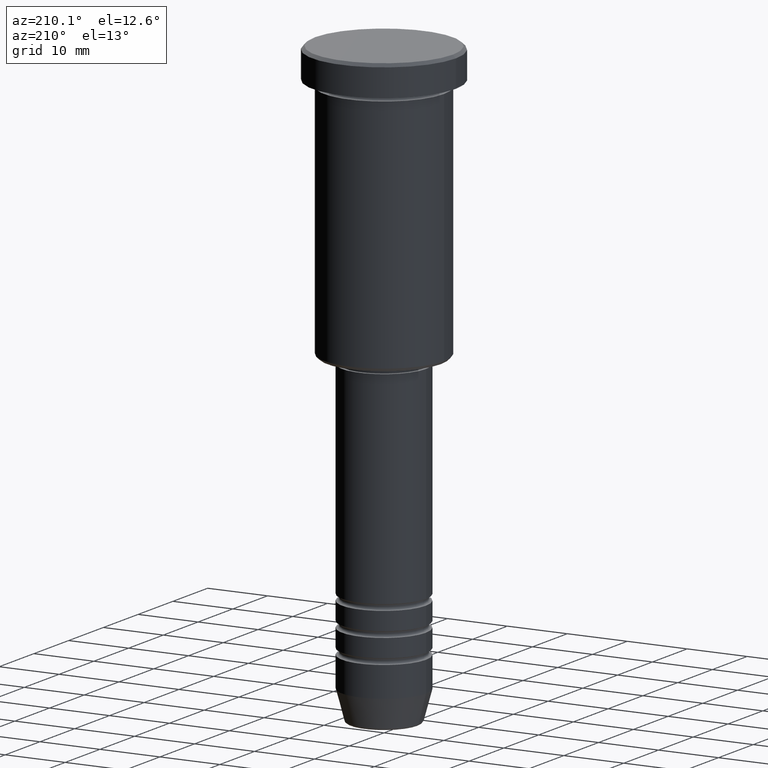
[diagram: clean part render]
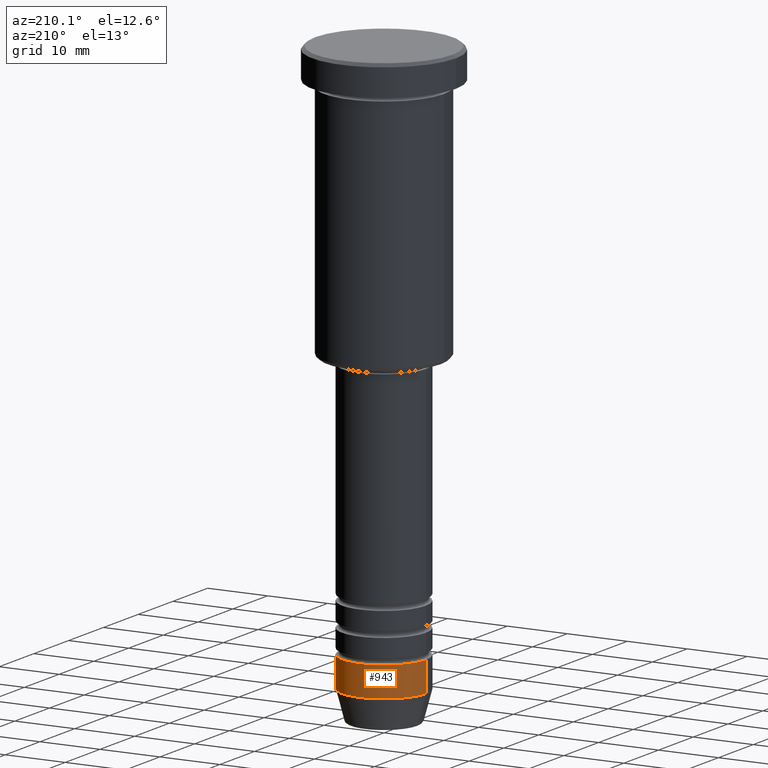
[diagram: same view with one face highlighted and labeled with its STEP entity id]
A machine part, auxiliary view. The second image highlights one B-rep face of the part: STEP entity #943.
In plain terms, the highlighted cylindrical surface (partial cylindrical patch) has radius 7 mm, axis along (-0, -0, 1).
Its self-contained STEP definition (entity closure, byte-faithful):
#9 = VERTEX_POINT ( 'NONE', #980 ) ;
#73 = CARTESIAN_POINT ( 'NONE',  ( 7.000000000000000888, 0.000000000000000000, -95.00000000000000000 ) ) ;
#122 = LINE ( 'NONE', #310, #748 ) ;
#145 = EDGE_CURVE ( 'NONE', #755, #9, #994, .T. ) ;
#178 = DIRECTION ( 'NONE',  ( 1.000000000000000000, 0.000000000000000000, 0.000000000000000000 ) ) ;
#179 = DIRECTION ( 'NONE',  ( 1.000000000000000000, 0.000000000000000000, 0.000000000000000000 ) ) ;
#240 = CARTESIAN_POINT ( 'NONE',  ( -7.000000000000000888, 8.572527594031474176E-16, 0.000000000000000000 ) ) ;
#264 = AXIS2_PLACEMENT_3D ( 'NONE', #958, #305, #178 ) ;
#290 = FACE_OUTER_BOUND ( 'NONE', #630, .T. ) ;
#305 = DIRECTION ( 'NONE',  ( -0.000000000000000000, -0.000000000000000000, 1.000000000000000000 ) ) ;
#310 = CARTESIAN_POINT ( 'NONE',  ( 7.000000000000000888, 0.000000000000000000, 0.000000000000000000 ) ) ;
#372 = DIRECTION ( 'NONE',  ( -0.000000000000000000, -0.000000000000000000, 1.000000000000000000 ) ) ;
#410 = CYLINDRICAL_SURFACE ( 'NONE', #264, 7.000000000000000888 ) ;
#427 = EDGE_CURVE ( 'NONE', #567, #9, #503, .T. ) ;
#428 = CARTESIAN_POINT ( 'NONE',  ( 0.000000000000000000, 0.000000000000000000, -90.00000000000000000 ) ) ;
#429 = DIRECTION ( 'NONE',  ( -0.000000000000000000, -0.000000000000000000, 1.000000000000000000 ) ) ;
#434 = DIRECTION ( 'NONE',  ( -0.000000000000000000, -0.000000000000000000, 1.000000000000000000 ) ) ;
#503 = CIRCLE ( 'NONE', #1046, 7.000000000000000000 ) ;
#538 = ORIENTED_EDGE ( 'NONE', *, *, #990, .F. ) ;
#567 = VERTEX_POINT ( 'NONE', #842 ) ;
#602 = VECTOR ( 'NONE', #429, 1000.000000000000000 ) ;
#612 = CARTESIAN_POINT ( 'NONE',  ( 0.000000000000000000, 0.000000000000000000, -95.00000000000000000 ) ) ;
#630 = EDGE_LOOP ( 'NONE', ( #871, #1157, #856, #538 ) ) ;
#726 = AXIS2_PLACEMENT_3D ( 'NONE', #612, #822, #1093 ) ;
#748 = VECTOR ( 'NONE', #372, 1000.000000000000000 ) ;
#755 = VERTEX_POINT ( 'NONE', #972 ) ;
#822 = DIRECTION ( 'NONE',  ( -0.000000000000000000, -0.000000000000000000, 1.000000000000000000 ) ) ;
#842 = CARTESIAN_POINT ( 'NONE',  ( 7.000000000000000000, 0.000000000000000000, -90.00000000000000000 ) ) ;
#843 = CIRCLE ( 'NONE', #726, 7.000000000000000888 ) ;
#856 = ORIENTED_EDGE ( 'NONE', *, *, #427, .F. ) ;
#871 = ORIENTED_EDGE ( 'NONE', *, *, #922, .T. ) ;
#922 = EDGE_CURVE ( 'NONE', #1049, #755, #843, .T. ) ;
#943 = ADVANCED_FACE ( 'NONE', ( #290 ), #410, .T. ) ;
#958 = CARTESIAN_POINT ( 'NONE',  ( 0.000000000000000000, 0.000000000000000000, 0.000000000000000000 ) ) ;
#972 = CARTESIAN_POINT ( 'NONE',  ( -7.000000000000000888, 8.572527594031474176E-16, -95.00000000000000000 ) ) ;
#980 = CARTESIAN_POINT ( 'NONE',  ( -7.000000000000000000, 8.572527594031473190E-16, -90.00000000000000000 ) ) ;
#990 = EDGE_CURVE ( 'NONE', #1049, #567, #122, .T. ) ;
#994 = LINE ( 'NONE', #240, #602 ) ;
#1046 = AXIS2_PLACEMENT_3D ( 'NONE', #428, #434, #179 ) ;
#1049 = VERTEX_POINT ( 'NONE', #73 ) ;
#1093 = DIRECTION ( 'NONE',  ( 1.000000000000000000, 0.000000000000000000, 0.000000000000000000 ) ) ;
#1157 = ORIENTED_EDGE ( 'NONE', *, *, #145, .T. ) ;